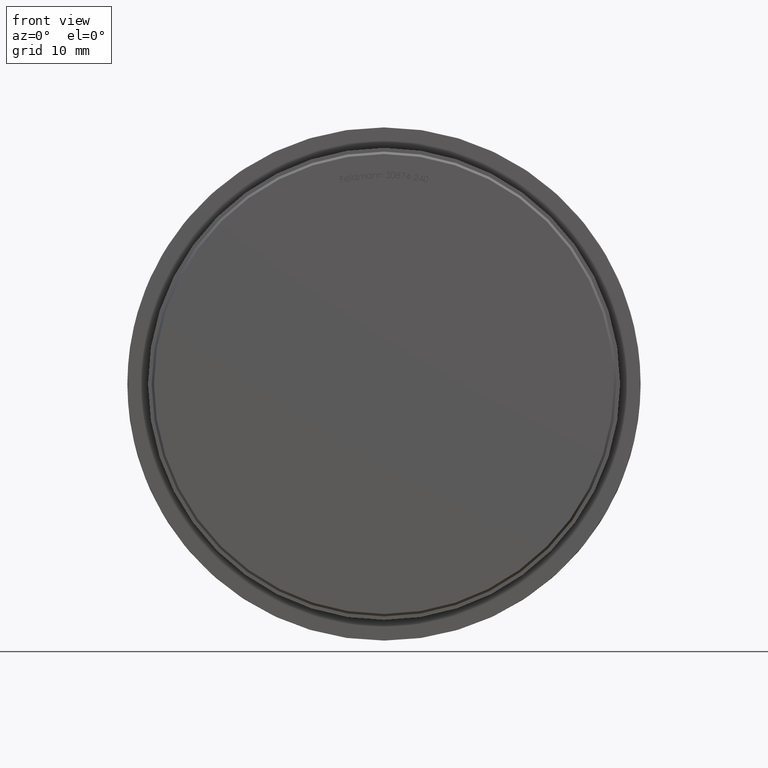
[diagram: clean part render]
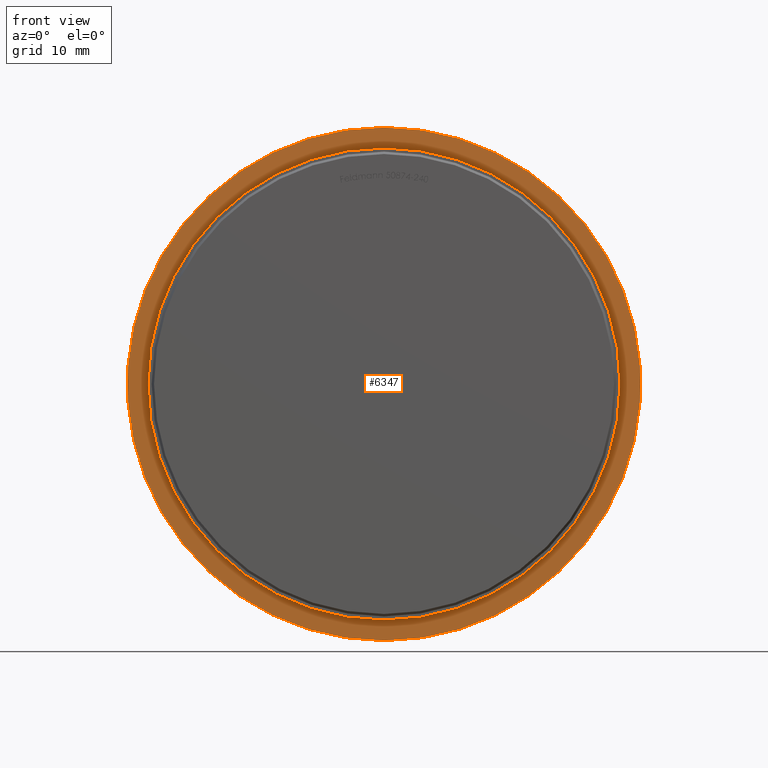
[diagram: same view with one face highlighted and labeled with its STEP entity id]
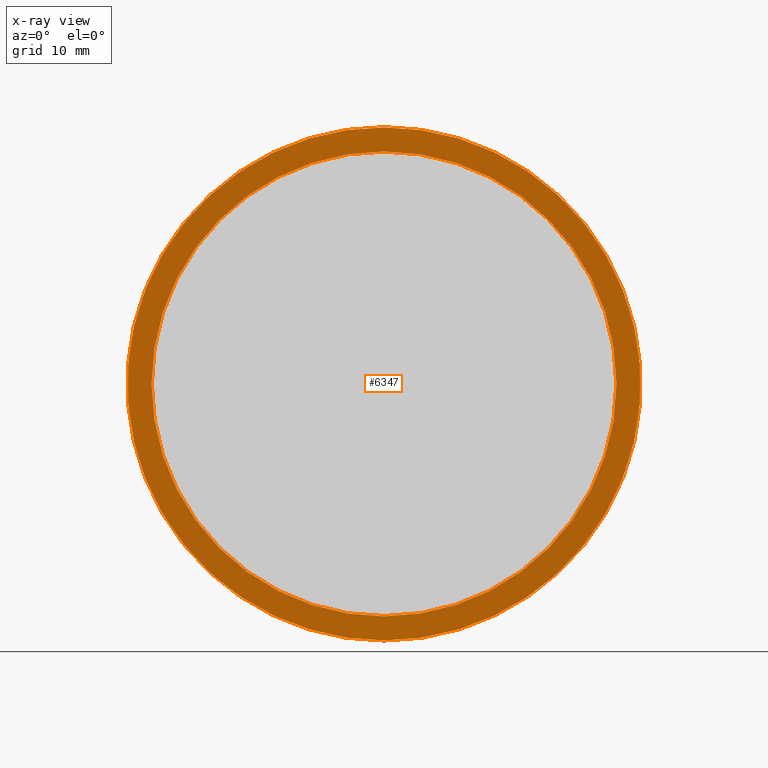
[diagram: x-ray of the same camera — body ghosted, the highlighted face saturated]
A machine part, front view. The second image highlights one B-rep face of the part: STEP entity #6347.
The next image is the same camera in x-ray: the body ghosted, the highlighted face saturated — about 0% of this face is hidden behind the body in this view.
In plain terms, the highlighted planar face has unit normal (0, -1, 0).
Its self-contained STEP definition (entity closure, byte-faithful):
#279 = DIRECTION ( 'NONE',  ( 0.0000000000000000000, 0.0000000000000000000, 1.000000000000000000 ) ) ;
#391 = CARTESIAN_POINT ( 'NONE',  ( 2.596251214192388800E-015, 4.500000000000004400, -21.19999999999999900 ) ) ;
#1585 = CARTESIAN_POINT ( 'NONE',  ( 0.0000000000000000000, 4.500000000000004400, 0.0000000000000000000 ) ) ;
#1702 = CARTESIAN_POINT ( 'NONE',  ( 0.0000000000000000000, 4.500000000000004400, 21.19999999999999900 ) ) ;
#1885 = AXIS2_PLACEMENT_3D ( 'NONE', #1585, #4537, #3638 ) ;
#1924 = EDGE_LOOP ( 'NONE', ( #11443, #11513 ) ) ;
#2041 = CARTESIAN_POINT ( 'NONE',  ( 0.0000000000000000000, 4.500000000000004400, 0.0000000000000000000 ) ) ;
#2057 = FACE_OUTER_BOUND ( 'NONE', #2110, .T. ) ;
#2110 = EDGE_LOOP ( 'NONE', ( #9842, #7791 ) ) ;
#2179 = DIRECTION ( 'NONE',  ( -0.0000000000000000000, 1.000000000000000000, -0.0000000000000000000 ) ) ;
#2869 = PLANE ( 'NONE',  #7530 ) ;
#2911 = CIRCLE ( 'NONE', #9108, 19.19999999999999900 ) ;
#2996 = VERTEX_POINT ( 'NONE', #1702 ) ;
#3416 = CIRCLE ( 'NONE', #1885, 21.19999999999999900 ) ;
#3492 = CIRCLE ( 'NONE', #7551, 21.19999999999999900 ) ;
#3619 = EDGE_CURVE ( 'NONE', #2996, #5978, #3492, .T. ) ;
#3638 = DIRECTION ( 'NONE',  ( 0.0000000000000000000, 0.0000000000000000000, 1.000000000000000000 ) ) ;
#3818 = CARTESIAN_POINT ( 'NONE',  ( -9.205490143744848900E-016, 4.500000000000002700, 0.0000000000000000000 ) ) ;
#4537 = DIRECTION ( 'NONE',  ( -0.0000000000000000000, 1.000000000000000000, -0.0000000000000000000 ) ) ;
#5654 = CARTESIAN_POINT ( 'NONE',  ( 0.0000000000000000000, 4.500000000000000900, -19.19999999999999900 ) ) ;
#5959 = EDGE_CURVE ( 'NONE', #8214, #12086, #2911, .T. ) ;
#5978 = VERTEX_POINT ( 'NONE', #391 ) ;
#6207 = EDGE_CURVE ( 'NONE', #5978, #2996, #3416, .T. ) ;
#6347 = ADVANCED_FACE ( 'NONE', ( #8044, #2057 ), #2869, .T. ) ;
#6429 = DIRECTION ( 'NONE',  ( 0.0000000000000000000, 0.0000000000000000000, 1.000000000000000000 ) ) ;
#7282 = DIRECTION ( 'NONE',  ( 0.0000000000000000000, 1.000000000000000000, 0.0000000000000000000 ) ) ;
#7406 = DIRECTION ( 'NONE',  ( 0.0000000000000000000, 1.000000000000000000, 0.0000000000000000000 ) ) ;
#7530 = AXIS2_PLACEMENT_3D ( 'NONE', #3818, #7778, #11731 ) ;
#7551 = AXIS2_PLACEMENT_3D ( 'NONE', #2041, #2179, #11909 ) ;
#7778 = DIRECTION ( 'NONE',  ( 0.0000000000000000000, -1.000000000000000000, 0.0000000000000000000 ) ) ;
#7791 = ORIENTED_EDGE ( 'NONE', *, *, #6207, .F. ) ;
#7970 = CIRCLE ( 'NONE', #12199, 19.19999999999999900 ) ;
#8044 = FACE_BOUND ( 'NONE', #1924, .T. ) ;
#8214 = VERTEX_POINT ( 'NONE', #5654 ) ;
#8999 = EDGE_CURVE ( 'NONE', #12086, #8214, #7970, .T. ) ;
#9108 = AXIS2_PLACEMENT_3D ( 'NONE', #9331, #7406, #6429 ) ;
#9331 = CARTESIAN_POINT ( 'NONE',  ( 0.0000000000000000000, 4.500000000000000900, 0.0000000000000000000 ) ) ;
#9842 = ORIENTED_EDGE ( 'NONE', *, *, #3619, .F. ) ;
#9995 = CARTESIAN_POINT ( 'NONE',  ( 2.351321854362917700E-015, 4.500000000000000900, 19.19999999999999900 ) ) ;
#11179 = CARTESIAN_POINT ( 'NONE',  ( 0.0000000000000000000, 4.500000000000000900, 0.0000000000000000000 ) ) ;
#11443 = ORIENTED_EDGE ( 'NONE', *, *, #5959, .T. ) ;
#11513 = ORIENTED_EDGE ( 'NONE', *, *, #8999, .T. ) ;
#11731 = DIRECTION ( 'NONE',  ( 0.0000000000000000000, -0.0000000000000000000, -1.000000000000000000 ) ) ;
#11909 = DIRECTION ( 'NONE',  ( 0.0000000000000000000, 0.0000000000000000000, 1.000000000000000000 ) ) ;
#12086 = VERTEX_POINT ( 'NONE', #9995 ) ;
#12199 = AXIS2_PLACEMENT_3D ( 'NONE', #11179, #7282, #279 ) ;